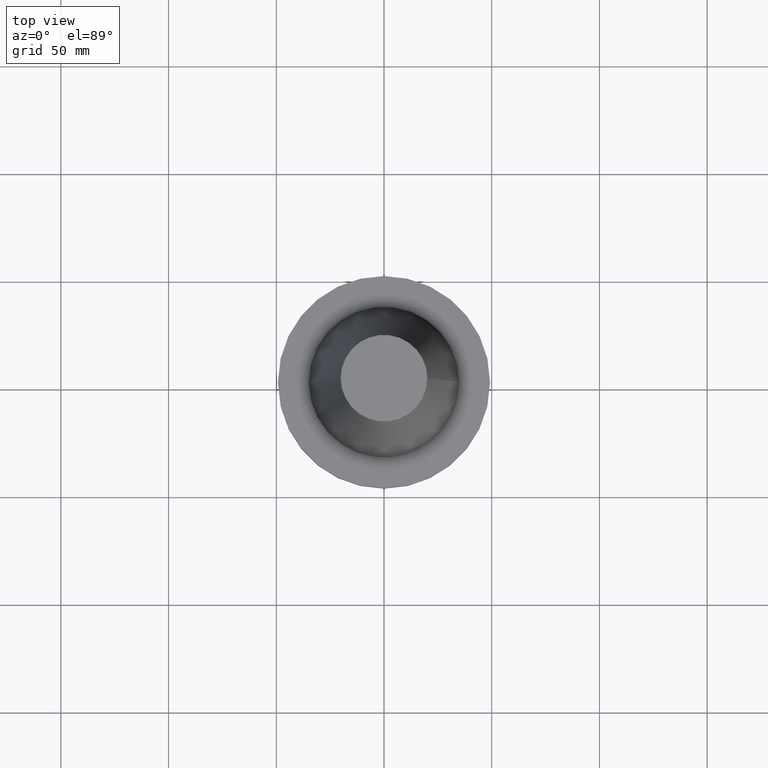
[diagram: clean part render]
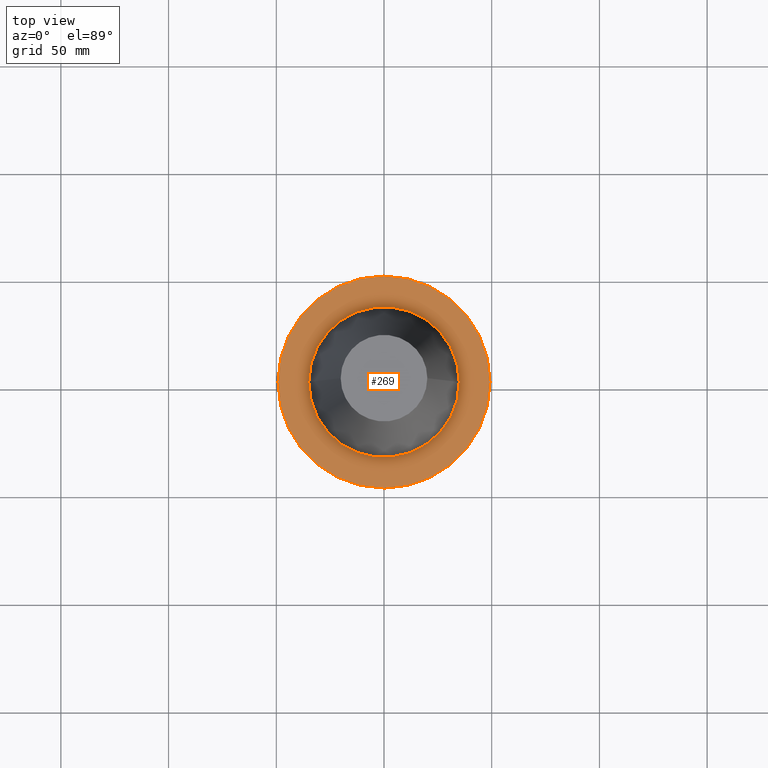
[diagram: same view with one face highlighted and labeled with its STEP entity id]
A machine part, top view. The second image highlights one B-rep face of the part: STEP entity #269.
In plain terms, the highlighted planar face has unit normal (0, 0, -1).
Its self-contained STEP definition (entity closure, byte-faithful):
#32 = CIRCLE ( 'NONE', #797, 34.92499999999999005 ) ;
#71 = ORIENTED_EDGE ( 'NONE', *, *, #169, .T. ) ;
#89 = ORIENTED_EDGE ( 'NONE', *, *, #592, .F. ) ;
#145 = ORIENTED_EDGE ( 'NONE', *, *, #666, .F. ) ;
#154 = VERTEX_POINT ( 'NONE', #825 ) ;
#165 = DIRECTION ( 'NONE',  ( -0.000000000000000000, -0.000000000000000000, 1.000000000000000000 ) ) ;
#169 = EDGE_CURVE ( 'NONE', #697, #154, #1066, .T. ) ;
#263 = DIRECTION ( 'NONE',  ( -1.000000000000000000, 0.000000000000000000, -0.000000000000000000 ) ) ;
#269 = ADVANCED_FACE ( 'NONE', ( #599, #674 ), #758, .F. ) ;
#282 = DIRECTION ( 'NONE',  ( 1.000000000000000000, 0.000000000000000000, 0.000000000000000000 ) ) ;
#321 = DIRECTION ( 'NONE',  ( 1.000000000000000000, 0.000000000000000000, 0.000000000000000000 ) ) ;
#333 = DIRECTION ( 'NONE',  ( 1.000000000000000000, 0.000000000000000000, 0.000000000000000000 ) ) ;
#348 = CIRCLE ( 'NONE', #440, 49.21499999999999631 ) ;
#354 = DIRECTION ( 'NONE',  ( 0.000000000000000000, 0.000000000000000000, -1.000000000000000000 ) ) ;
#435 = AXIS2_PLACEMENT_3D ( 'NONE', #1000, #658, #321 ) ;
#440 = AXIS2_PLACEMENT_3D ( 'NONE', #1035, #636, #282 ) ;
#483 = EDGE_CURVE ( 'NONE', #154, #697, #348, .T. ) ;
#486 = DIRECTION ( 'NONE',  ( 1.000000000000000000, 0.000000000000000000, 0.000000000000000000 ) ) ;
#495 = CARTESIAN_POINT ( 'NONE',  ( 0.000000000000000000, 0.000000000000000000, -1.499999999999987566 ) ) ;
#499 = AXIS2_PLACEMENT_3D ( 'NONE', #537, #354, #263 ) ;
#508 = CIRCLE ( 'NONE', #740, 34.92499999999999005 ) ;
#537 = CARTESIAN_POINT ( 'NONE',  ( 0.000000000000000000, 49.21499999999999631, -1.499999999999992895 ) ) ;
#562 = VERTEX_POINT ( 'NONE', #812 ) ;
#592 = EDGE_CURVE ( 'NONE', #600, #562, #508, .T. ) ;
#599 = FACE_BOUND ( 'NONE', #675, .T. ) ;
#600 = VERTEX_POINT ( 'NONE', #898 ) ;
#636 = DIRECTION ( 'NONE',  ( -0.000000000000000000, -0.000000000000000000, 1.000000000000000000 ) ) ;
#658 = DIRECTION ( 'NONE',  ( -0.000000000000000000, -0.000000000000000000, 1.000000000000000000 ) ) ;
#662 = CARTESIAN_POINT ( 'NONE',  ( 0.000000000000000000, 0.000000000000000000, -1.499999999999987566 ) ) ;
#666 = EDGE_CURVE ( 'NONE', #562, #600, #32, .T. ) ;
#674 = FACE_OUTER_BOUND ( 'NONE', #959, .T. ) ;
#675 = EDGE_LOOP ( 'NONE', ( #89, #145 ) ) ;
#697 = VERTEX_POINT ( 'NONE', #841 ) ;
#740 = AXIS2_PLACEMENT_3D ( 'NONE', #662, #1082, #486 ) ;
#758 = PLANE ( 'NONE',  #499 ) ;
#769 = ORIENTED_EDGE ( 'NONE', *, *, #483, .T. ) ;
#797 = AXIS2_PLACEMENT_3D ( 'NONE', #495, #165, #333 ) ;
#812 = CARTESIAN_POINT ( 'NONE',  ( -34.92499999999999005, 4.277078946022130098E-15, -1.499999999999987566 ) ) ;
#825 = CARTESIAN_POINT ( 'NONE',  ( 49.21499999999999631, 0.000000000000000000, -1.499999999999987566 ) ) ;
#841 = CARTESIAN_POINT ( 'NONE',  ( -49.21499999999999631, 6.027099222003697826E-15, -1.499999999999987566 ) ) ;
#898 = CARTESIAN_POINT ( 'NONE',  ( 34.92499999999999005, 0.000000000000000000, -1.499999999999987566 ) ) ;
#959 = EDGE_LOOP ( 'NONE', ( #769, #71 ) ) ;
#1000 = CARTESIAN_POINT ( 'NONE',  ( 0.000000000000000000, 0.000000000000000000, -1.499999999999987566 ) ) ;
#1035 = CARTESIAN_POINT ( 'NONE',  ( 0.000000000000000000, 0.000000000000000000, -1.499999999999987566 ) ) ;
#1066 = CIRCLE ( 'NONE', #435, 49.21499999999999631 ) ;
#1082 = DIRECTION ( 'NONE',  ( -0.000000000000000000, -0.000000000000000000, 1.000000000000000000 ) ) ;